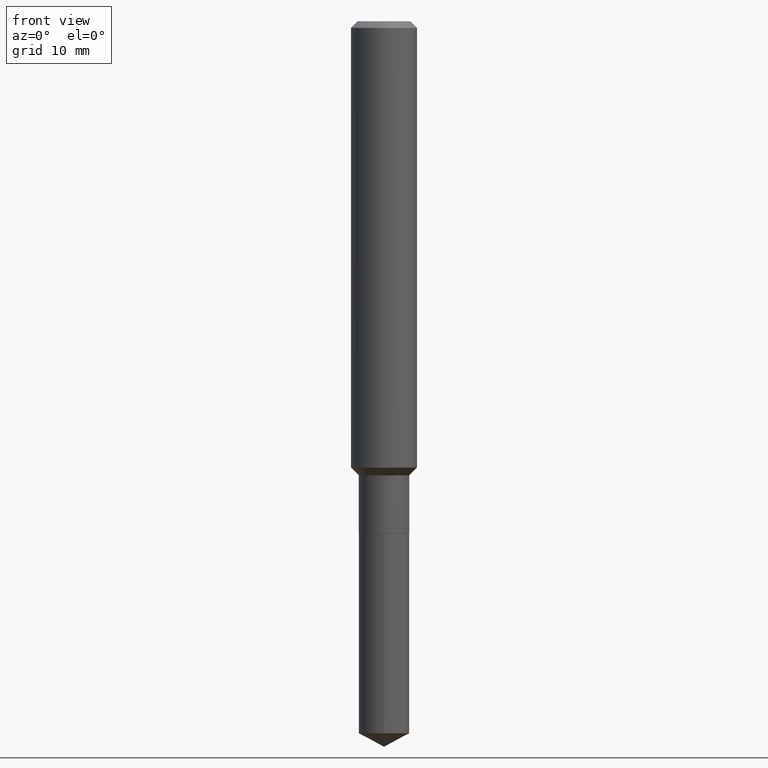
[diagram: clean part render]
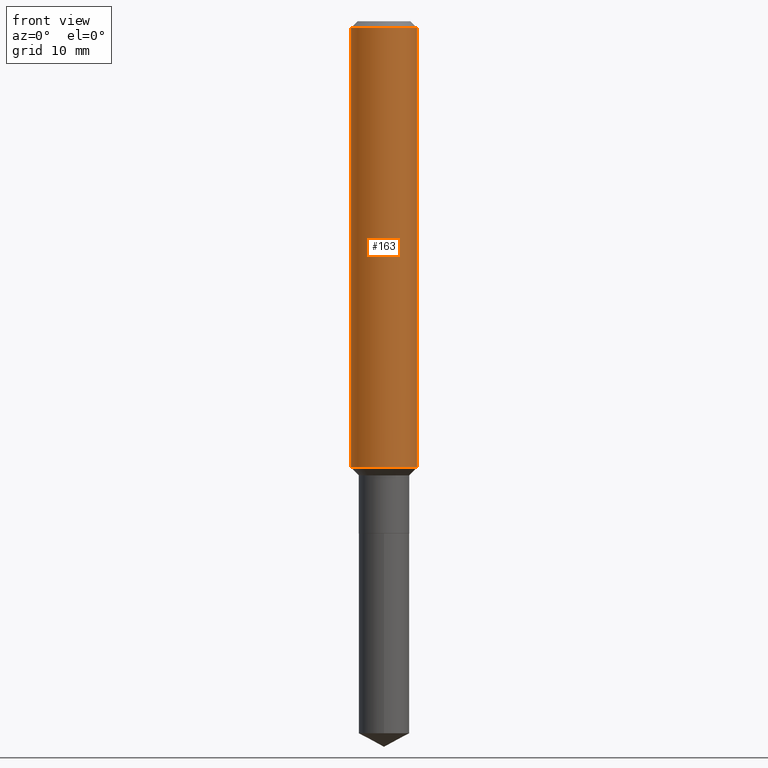
[diagram: same view with one face highlighted and labeled with its STEP entity id]
A machine part, front view. The second image highlights one B-rep face of the part: STEP entity #163.
In plain terms, the highlighted cylindrical surface (edge-blend (fillet) strip) has radius 2.9997 mm, axis along (-0, 0, 1).
Its self-contained STEP definition (entity closure, byte-faithful):
#26 = VERTEX_POINT ( 'NONE', #80 ) ;
#27 = AXIS2_PLACEMENT_3D ( 'NONE', #144, #147, #470 ) ;
#33 = CARTESIAN_POINT ( 'NONE',  ( 0.1181000000000001077, -8.246878922347488542E-16, 5.758764772215005345E-30 ) ) ;
#54 = DIRECTION ( 'NONE',  ( 1.000000000000000000, -6.982962677686266711E-15, 0.000000000000000000 ) ) ;
#60 = VERTEX_POINT ( 'NONE', #238 ) ;
#63 = ORIENTED_EDGE ( 'NONE', *, *, #283, .F. ) ;
#67 = CIRCLE ( 'NONE', #95, 0.1180999999999999966 ) ;
#76 = ORIENTED_EDGE ( 'NONE', *, *, #143, .T. ) ;
#80 = CARTESIAN_POINT ( 'NONE',  ( 0.1180999999999999966, -9.071566814582237199E-16, -0.02362000000000013741 ) ) ;
#91 = CARTESIAN_POINT ( 'NONE',  ( 0.000000000000000000, 0.000000000000000000, 0.000000000000000000 ) ) ;
#93 = DIRECTION ( 'NONE',  ( 1.000000000000000000, -6.982962677686266711E-15, 4.876176775795935793E-29 ) ) ;
#95 = AXIS2_PLACEMENT_3D ( 'NONE', #182, #293, #54 ) ;
#111 = EDGE_LOOP ( 'NONE', ( #63, #471, #76, #320 ) ) ;
#116 = FACE_OUTER_BOUND ( 'NONE', #111, .T. ) ;
#137 = DIRECTION ( 'NONE',  ( -2.445468806185136877E-29, 3.491481338843145188E-15, 1.000000000000000000 ) ) ;
#139 = LINE ( 'NONE', #169, #289 ) ;
#143 = EDGE_CURVE ( 'NONE', #359, #26, #155, .T. ) ;
#144 = CARTESIAN_POINT ( 'NONE',  ( 3.909693253888486103E-29, -5.582005790475478148E-15, -1.598749999999999671 ) ) ;
#147 = DIRECTION ( 'NONE',  ( -2.445468806185136597E-29, 3.491481338843145583E-15, 1.000000000000000000 ) ) ;
#155 = LINE ( 'NONE', #33, #363 ) ;
#163 = ADVANCED_FACE ( 'NONE', ( #116 ), #271, .T. ) ;
#169 = CARTESIAN_POINT ( 'NONE',  ( -0.1181000000000001077, 8.391509709326790846E-16, -5.809262341591049389E-30 ) ) ;
#182 = CARTESIAN_POINT ( 'NONE',  ( 5.776197320209326656E-31, -8.246878922347558061E-17, -0.02362000000000013741 ) ) ;
#196 = DIRECTION ( 'NONE',  ( -2.445468806185136877E-29, 3.491481338843145188E-15, 1.000000000000000000 ) ) ;
#212 = CIRCLE ( 'NONE', #27, 0.1181000000000001909 ) ;
#238 = CARTESIAN_POINT ( 'NONE',  ( -0.1181000000000001909, -4.742854819542799162E-15, -1.598749999999999671 ) ) ;
#251 = DIRECTION ( 'NONE',  ( -2.445468806185136597E-29, 3.491481338843145583E-15, 1.000000000000000000 ) ) ;
#256 = CARTESIAN_POINT ( 'NONE',  ( 0.1181000000000001909, -6.406693682710227199E-15, -1.598749999999999671 ) ) ;
#271 = CYLINDRICAL_SURFACE ( 'NONE', #398, 0.1181000000000001077 ) ;
#283 = EDGE_CURVE ( 'NONE', #60, #474, #139, .T. ) ;
#289 = VECTOR ( 'NONE', #137, 39.37007874015748143 ) ;
#293 = DIRECTION ( 'NONE',  ( -2.445468806185136597E-29, 3.491481338843145583E-15, 1.000000000000000000 ) ) ;
#320 = ORIENTED_EDGE ( 'NONE', *, *, #351, .F. ) ;
#340 = CARTESIAN_POINT ( 'NONE',  ( -0.1180999999999999966, -1.993086318916797028E-15, -0.02362000000000013741 ) ) ;
#351 = EDGE_CURVE ( 'NONE', #474, #26, #67, .T. ) ;
#359 = VERTEX_POINT ( 'NONE', #256 ) ;
#363 = VECTOR ( 'NONE', #196, 39.37007874015748143 ) ;
#398 = AXIS2_PLACEMENT_3D ( 'NONE', #91, #251, #93 ) ;
#416 = EDGE_CURVE ( 'NONE', #60, #359, #212, .T. ) ;
#470 = DIRECTION ( 'NONE',  ( 1.000000000000000000, -6.982962677686269077E-15, 0.000000000000000000 ) ) ;
#471 = ORIENTED_EDGE ( 'NONE', *, *, #416, .T. ) ;
#474 = VERTEX_POINT ( 'NONE', #340 ) ;